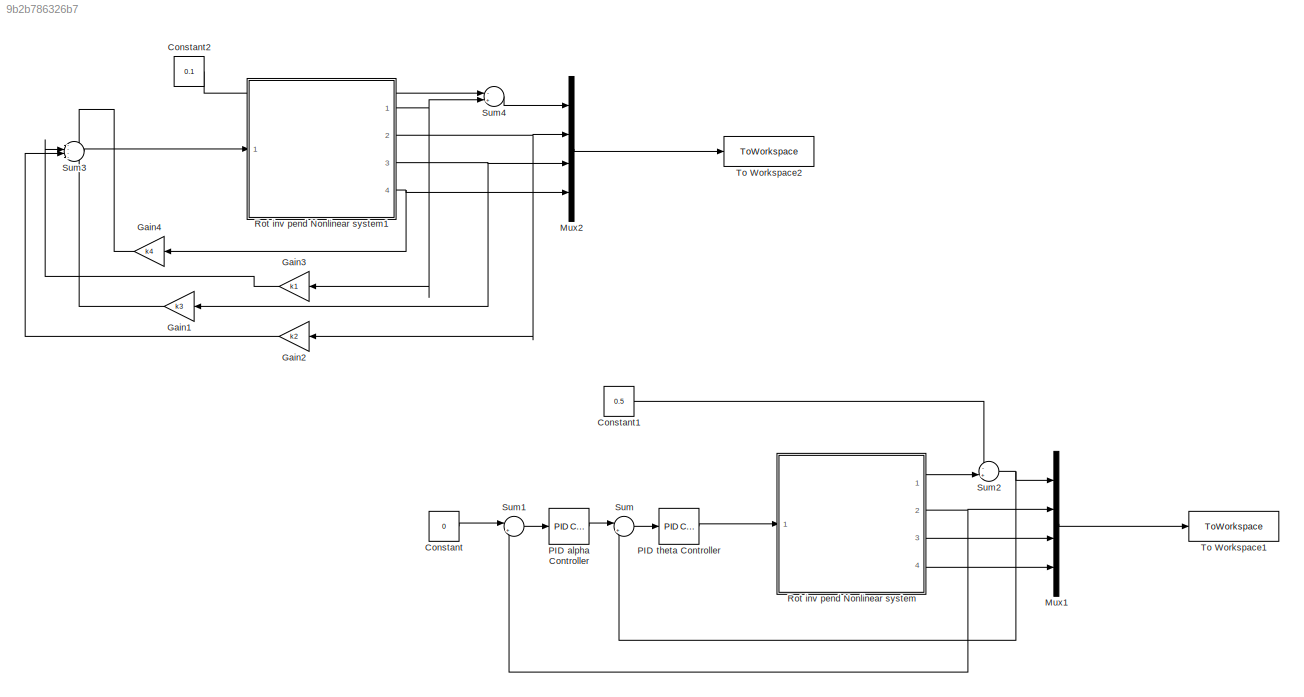
MODEL slx_9b2b786326b7
KIND model
CONFIG AbsTol = auto
CONFIG EnableMultiTasking = off
CONFIG FixedStep = auto
CONFIG MaxStep = auto
CONFIG MinStep = auto
CONFIG RelTol = 1e-3
CONFIG SampleTimeConstraint = Unconstrained
CONFIG Solver = VariableStepAuto
CONFIG SolverName = VariableStepAuto
CONFIG StartTime = 0.0
CONFIG StopTime = 10.0
BLOCK [Constant] Constant
  Value = 0
BLOCK [Constant] Constant1
  Value = 0.5
BLOCK [Constant] Constant2
  Value = 0.1
BLOCK [Gain] Gain1
  Gain = k3
  OutDataTypeStr = Inherit: Inherit via internal rule
  ParamDataTypeStr = Inherit: Inherit via internal rule
  SaturateOnIntegerOverflow = off
BLOCK [Gain] Gain2
  Gain = k2
  OutDataTypeStr = Inherit: Inherit via internal rule
  ParamDataTypeStr = Inherit: Inherit via internal rule
  SaturateOnIntegerOverflow = off
BLOCK [Gain] Gain3
  Gain = k1
  OutDataTypeStr = Inherit: Inherit via internal rule
  ParamDataTypeStr = Inherit: Inherit via internal rule
  SaturateOnIntegerOverflow = off
BLOCK [Gain] Gain4
  Gain = k4
  OutDataTypeStr = Inherit: Inherit via internal rule
  ParamDataTypeStr = Inherit: Inherit via internal rule
  SaturateOnIntegerOverflow = off
BLOCK [Mux] Mux1
  DisplayOption = bar
  Ports = [4, 1]
BLOCK [Mux] Mux2
  DisplayOption = bar
  Ports = [4, 1]
BLOCK [Reference] PID alpha Controller  REF=simulink/Continuous/PID Controller
  Ports = [1, 1]
  SourceBlock = simulink/Continuous/PID Controller
  SourceProductBaseCode = SL
  SourceProductName = Simulink
  SourceType = PID 1dof
BLOCK [Reference] PID theta Controller  REF=simulink/Continuous/PID Controller
  Ports = [1, 1]
  SourceBlock = simulink/Continuous/PID Controller
  SourceProductBaseCode = SL
  SourceProductName = Simulink
  SourceType = PID 1dof
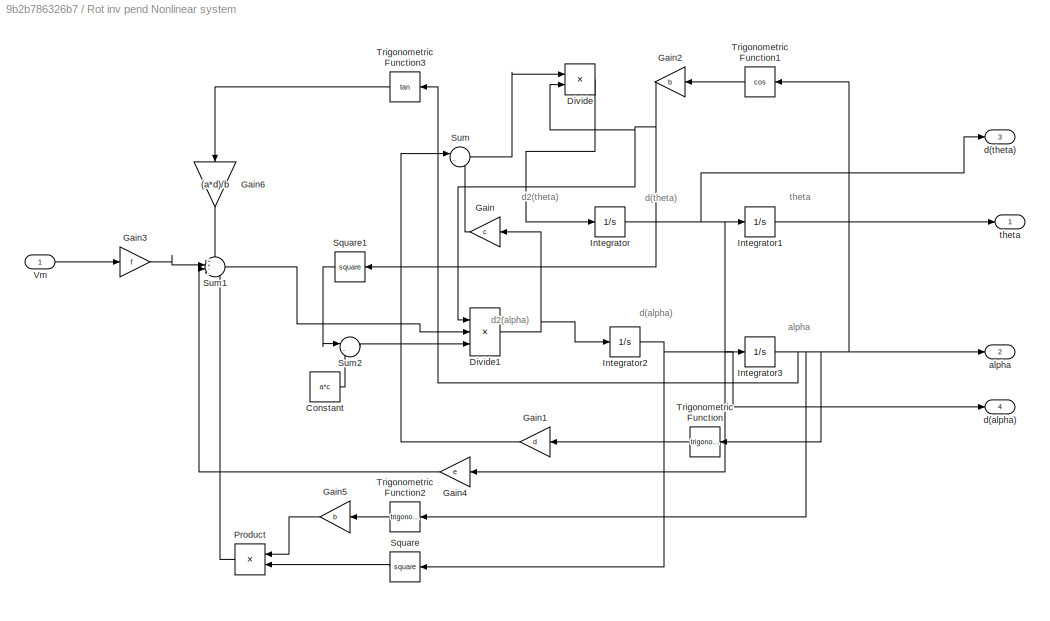
BLOCK [SubSystem] Rot inv pend Nonlinear system
  Ports = [1, 4]
  RequestExecContextInheritance = off
BLOCK [Constant] Rot inv pend Nonlinear system/Constant
  Value = a*c
BLOCK [Product] Rot inv pend Nonlinear system/Divide
  InputSameDT = off
  Inputs = */
  OutDataTypeStr = Inherit: Inherit via internal rule
  Ports = [2, 1]
  RndMeth = Floor
  SaturateOnIntegerOverflow = off
BLOCK [Product] Rot inv pend Nonlinear system/Divide1
  InputSameDT = off
  Inputs = **/
  OutDataTypeStr = Inherit: Inherit via internal rule
  Ports = [3, 1]
  RndMeth = Floor
  SaturateOnIntegerOverflow = off
BLOCK [Gain] Rot inv pend Nonlinear system/Gain
  Gain = c
  OutDataTypeStr = Inherit: Inherit via internal rule
  ParamDataTypeStr = Inherit: Inherit via internal rule
  SaturateOnIntegerOverflow = off
BLOCK [Gain] Rot inv pend Nonlinear system/Gain1
  Gain = d
  OutDataTypeStr = Inherit: Inherit via internal rule
  ParamDataTypeStr = Inherit: Inherit via internal rule
  SaturateOnIntegerOverflow = off
BLOCK [Gain] Rot inv pend Nonlinear system/Gain2
  Gain = b
  OutDataTypeStr = Inherit: Inherit via internal rule
  ParamDataTypeStr = Inherit: Inherit via internal rule
  SaturateOnIntegerOverflow = off
BLOCK [Gain] Rot inv pend Nonlinear system/Gain3
  Gain = f
  OutDataTypeStr = Inherit: Inherit via internal rule
  ParamDataTypeStr = Inherit: Inherit via internal rule
  SaturateOnIntegerOverflow = off
BLOCK [Gain] Rot inv pend Nonlinear system/Gain4
  Gain = e
  OutDataTypeStr = Inherit: Inherit via internal rule
  ParamDataTypeStr = Inherit: Inherit via internal rule
  SaturateOnIntegerOverflow = off
BLOCK [Gain] Rot inv pend Nonlinear system/Gain5
  Gain = b
  OutDataTypeStr = Inherit: Inherit via internal rule
  ParamDataTypeStr = Inherit: Inherit via internal rule
  SaturateOnIntegerOverflow = off
BLOCK [Gain] Rot inv pend Nonlinear system/Gain6
  Gain = (a*d)/b
  OutDataTypeStr = Inherit: Inherit via internal rule
  ParamDataTypeStr = Inherit: Inherit via internal rule
  SaturateOnIntegerOverflow = off
BLOCK [Integrator] Rot inv pend Nonlinear system/Integrator
  Ports = [1, 1]
BLOCK [Integrator] Rot inv pend Nonlinear system/Integrator1
  InitialCondition = theta_init
  Ports = [1, 1]
BLOCK [Integrator] Rot inv pend Nonlinear system/Integrator2
  Ports = [1, 1]
BLOCK [Integrator] Rot inv pend Nonlinear system/Integrator3
  InitialCondition = alpha_init
  Ports = [1, 1]
BLOCK [Product] Rot inv pend Nonlinear system/Product
  InputSameDT = off
  OutDataTypeStr = Inherit: Inherit via internal rule
  Ports = [2, 1]
  RndMeth = Floor
  SaturateOnIntegerOverflow = off
BLOCK [Math] Rot inv pend Nonlinear system/Square
  Operator = square
  Ports = [1, 1]
  SignedPower = off
BLOCK [Math] Rot inv pend Nonlinear system/Square1
  Operator = square
  Ports = [1, 1]
  SignedPower = off
BLOCK [Sum] Rot inv pend Nonlinear system/Sum
  IconShape = round
  InputSameDT = off
  Inputs = |-+
  OutDataTypeStr = Inherit: Inherit via internal rule
  Ports = [2, 1]
  SaturateOnIntegerOverflow = off
BLOCK [Sum] Rot inv pend Nonlinear system/Sum1
  IconShape = round
  InputSameDT = off
  Inputs = ++--
  OutDataTypeStr = Inherit: Inherit via internal rule
  Ports = [4, 1]
  SaturateOnIntegerOverflow = off
BLOCK [Sum] Rot inv pend Nonlinear system/Sum2
  IconShape = round
  InputSameDT = off
  Inputs = |-+
  OutDataTypeStr = Inherit: Inherit via internal rule
  Ports = [2, 1]
  SaturateOnIntegerOverflow = off
BLOCK [Trigonometry] Rot inv pend Nonlinear system/Trigonometric Function
  Ports = [1, 1]
BLOCK [Trigonometry] Rot inv pend Nonlinear system/Trigonometric Function1
  Operator = cos
  Ports = [1, 1]
BLOCK [Trigonometry] Rot inv pend Nonlinear system/Trigonometric Function2
  Ports = [1, 1]
BLOCK [Trigonometry] Rot inv pend Nonlinear system/Trigonometric Function3
  Operator = tan
  Ports = [1, 1]
BLOCK [Inport] Rot inv pend Nonlinear system/Vm
  IconDisplay = Port number
BLOCK [Outport] Rot inv pend Nonlinear system/alpha
  IconDisplay = Port number
  Port = 2
BLOCK [Outport] Rot inv pend Nonlinear system/d(alpha)
  IconDisplay = Port number
  Port = 4
BLOCK [Outport] Rot inv pend Nonlinear system/d(theta)
  IconDisplay = Port number
  Port = 3
BLOCK [Outport] Rot inv pend Nonlinear system/theta
  IconDisplay = Port number
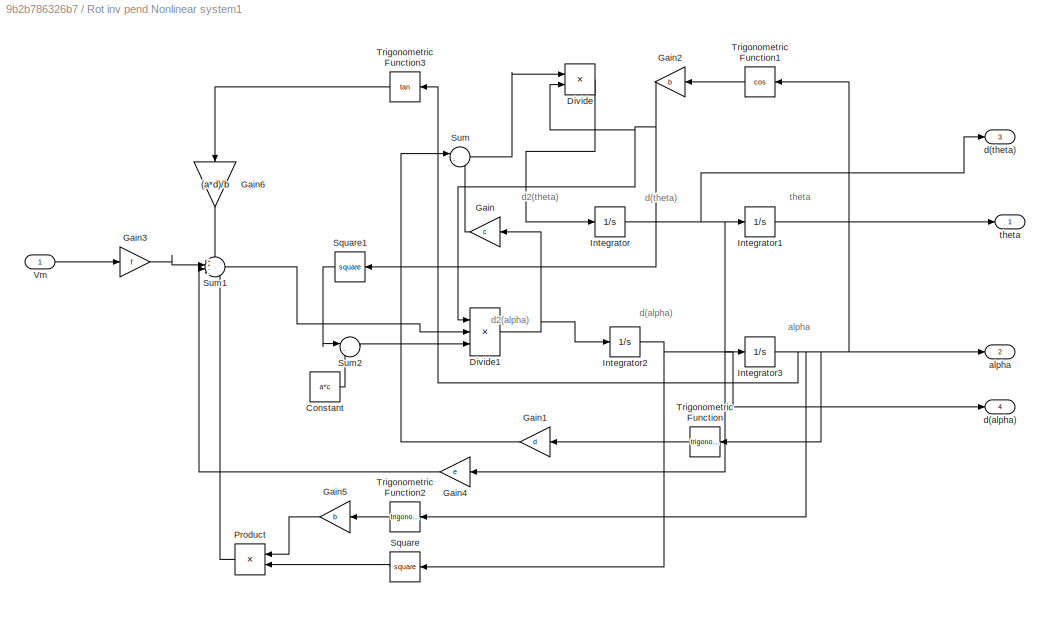
BLOCK [SubSystem] Rot inv pend Nonlinear system1
  Ports = [1, 4]
  RequestExecContextInheritance = off
BLOCK [Constant] Rot inv pend Nonlinear system1/Constant
  Value = a*c
BLOCK [Product] Rot inv pend Nonlinear system1/Divide
  InputSameDT = off
  Inputs = */
  OutDataTypeStr = Inherit: Inherit via internal rule
  Ports = [2, 1]
  RndMeth = Floor
  SaturateOnIntegerOverflow = off
BLOCK [Product] Rot inv pend Nonlinear system1/Divide1
  InputSameDT = off
  Inputs = **/
  OutDataTypeStr = Inherit: Inherit via internal rule
  Ports = [3, 1]
  RndMeth = Floor
  SaturateOnIntegerOverflow = off
BLOCK [Gain] Rot inv pend Nonlinear system1/Gain
  Gain = c
  OutDataTypeStr = Inherit: Inherit via internal rule
  ParamDataTypeStr = Inherit: Inherit via internal rule
  SaturateOnIntegerOverflow = off
BLOCK [Gain] Rot inv pend Nonlinear system1/Gain1
  Gain = d
  OutDataTypeStr = Inherit: Inherit via internal rule
  ParamDataTypeStr = Inherit: Inherit via internal rule
  SaturateOnIntegerOverflow = off
BLOCK [Gain] Rot inv pend Nonlinear system1/Gain2
  Gain = b
  OutDataTypeStr = Inherit: Inherit via internal rule
  ParamDataTypeStr = Inherit: Inherit via internal rule
  SaturateOnIntegerOverflow = off
BLOCK [Gain] Rot inv pend Nonlinear system1/Gain3
  Gain = f
  OutDataTypeStr = Inherit: Inherit via internal rule
  ParamDataTypeStr = Inherit: Inherit via internal rule
  SaturateOnIntegerOverflow = off
BLOCK [Gain] Rot inv pend Nonlinear system1/Gain4
  Gain = e
  OutDataTypeStr = Inherit: Inherit via internal rule
  ParamDataTypeStr = Inherit: Inherit via internal rule
  SaturateOnIntegerOverflow = off
BLOCK [Gain] Rot inv pend Nonlinear system1/Gain5
  Gain = b
  OutDataTypeStr = Inherit: Inherit via internal rule
  ParamDataTypeStr = Inherit: Inherit via internal rule
  SaturateOnIntegerOverflow = off
BLOCK [Gain] Rot inv pend Nonlinear system1/Gain6
  Gain = (a*d)/b
  OutDataTypeStr = Inherit: Inherit via internal rule
  ParamDataTypeStr = Inherit: Inherit via internal rule
  SaturateOnIntegerOverflow = off
BLOCK [Integrator] Rot inv pend Nonlinear system1/Integrator
  Ports = [1, 1]
BLOCK [Integrator] Rot inv pend Nonlinear system1/Integrator1
  InitialCondition = theta_init
  Ports = [1, 1]
BLOCK [Integrator] Rot inv pend Nonlinear system1/Integrator2
  Ports = [1, 1]
BLOCK [Integrator] Rot inv pend Nonlinear system1/Integrator3
  InitialCondition = alpha_init
  Ports = [1, 1]
BLOCK [Product] Rot inv pend Nonlinear system1/Product
  InputSameDT = off
  OutDataTypeStr = Inherit: Inherit via internal rule
  Ports = [2, 1]
  RndMeth = Floor
  SaturateOnIntegerOverflow = off
BLOCK [Math] Rot inv pend Nonlinear system1/Square
  Operator = square
  Ports = [1, 1]
  SignedPower = off
BLOCK [Math] Rot inv pend Nonlinear system1/Square1
  Operator = square
  Ports = [1, 1]
  SignedPower = off
BLOCK [Sum] Rot inv pend Nonlinear system1/Sum
  IconShape = round
  InputSameDT = off
  Inputs = |-+
  OutDataTypeStr = Inherit: Inherit via internal rule
  Ports = [2, 1]
  SaturateOnIntegerOverflow = off
BLOCK [Sum] Rot inv pend Nonlinear system1/Sum1
  IconShape = round
  InputSameDT = off
  Inputs = ++--
  OutDataTypeStr = Inherit: Inherit via internal rule
  Ports = [4, 1]
  SaturateOnIntegerOverflow = off
BLOCK [Sum] Rot inv pend Nonlinear system1/Sum2
  IconShape = round
  InputSameDT = off
  Inputs = |-+
  OutDataTypeStr = Inherit: Inherit via internal rule
  Ports = [2, 1]
  SaturateOnIntegerOverflow = off
BLOCK [Trigonometry] Rot inv pend Nonlinear system1/Trigonometric Function
  Ports = [1, 1]
BLOCK [Trigonometry] Rot inv pend Nonlinear system1/Trigonometric Function1
  Operator = cos
  Ports = [1, 1]
BLOCK [Trigonometry] Rot inv pend Nonlinear system1/Trigonometric Function2
  Ports = [1, 1]
BLOCK [Trigonometry] Rot inv pend Nonlinear system1/Trigonometric Function3
  Operator = tan
  Ports = [1, 1]
BLOCK [Inport] Rot inv pend Nonlinear system1/Vm
  IconDisplay = Port number
BLOCK [Outport] Rot inv pend Nonlinear system1/alpha
  IconDisplay = Port number
  Port = 2
BLOCK [Outport] Rot inv pend Nonlinear system1/d(alpha)
  IconDisplay = Port number
  Port = 4
BLOCK [Outport] Rot inv pend Nonlinear system1/d(theta)
  IconDisplay = Port number
  Port = 3
BLOCK [Outport] Rot inv pend Nonlinear system1/theta
  IconDisplay = Port number
BLOCK [Sum] Sum
  IconShape = round
  InputSameDT = off
  Inputs = |+-
  OutDataTypeStr = Inherit: Inherit via internal rule
  Ports = [2, 1]
  SaturateOnIntegerOverflow = off
BLOCK [Sum] Sum1
  IconShape = round
  InputSameDT = off
  Inputs = |+-
  OutDataTypeStr = Inherit: Inherit via internal rule
  Ports = [2, 1]
  SaturateOnIntegerOverflow = off
BLOCK [Sum] Sum2
  IconShape = round
  InputSameDT = off
  Inputs = -+|
  OutDataTypeStr = Inherit: Inherit via internal rule
  Ports = [2, 1]
  SaturateOnIntegerOverflow = off
BLOCK [Sum] Sum3
  IconShape = round
  InputSameDT = off
  Inputs = ----
  OutDataTypeStr = Inherit: Inherit via internal rule
  Ports = [4, 1]
  SaturateOnIntegerOverflow = off
BLOCK [Sum] Sum4
  IconShape = round
  InputSameDT = off
  Inputs = -+|
  OutDataTypeStr = Inherit: Inherit via internal rule
  Ports = [2, 1]
  SaturateOnIntegerOverflow = off
BLOCK [ToWorkspace] To Workspace1
  FixptAsFi = on
  MaxDataPoints = inf
  Ports = [1]
  SampleTime = -1
  SaveFormat = Timeseries
  VariableName = nonlinrip_pid
BLOCK [ToWorkspace] To Workspace2
  FixptAsFi = on
  MaxDataPoints = inf
  Ports = [1]
  SampleTime = -1
  SaveFormat = Timeseries
  VariableName = nonlinrip_sf
ANNOTATION Rot inv pend Nonlinear system: alpha
ANNOTATION Rot inv pend Nonlinear system: d(alpha)
ANNOTATION Rot inv pend Nonlinear system: d(theta)
ANNOTATION Rot inv pend Nonlinear system: d2(alpha)
ANNOTATION Rot inv pend Nonlinear system: d2(theta)
ANNOTATION Rot inv pend Nonlinear system: theta
ANNOTATION Rot inv pend Nonlinear system1: alpha
ANNOTATION Rot inv pend Nonlinear system1: d(alpha)
ANNOTATION Rot inv pend Nonlinear system1: d(theta)
ANNOTATION Rot inv pend Nonlinear system1: d2(alpha)
ANNOTATION Rot inv pend Nonlinear system1: d2(theta)
ANNOTATION Rot inv pend Nonlinear system1: theta
LINE Constant1:1 -> Sum2:1
LINE Constant2:1 -> Sum4:1
LINE Constant:1 -> Sum1:1
LINE Gain1:1 -> Sum3:4
LINE Gain2:1 -> Sum3:3
LINE Gain3:1 -> Sum3:2
LINE Gain4:1 -> Sum3:1
LINE Mux1:1 -> To Workspace1:1
LINE Mux2:1 -> To Workspace2:1
LINE PID alpha Controller:1 -> Sum:1
LINE PID theta Controller:1 -> Rot inv pend Nonlinear system:1
LINE Rot inv pend Nonlinear system/Constant:1 -> Rot inv pend Nonlinear system/Sum2:2
NET Rot inv pend Nonlinear system/Divide1:1 -> Rot inv pend Nonlinear system/Gain:1, Rot inv pend Nonlinear system/Integrator2:1
LINE Rot inv pend Nonlinear system/Divide:1 -> Rot inv pend Nonlinear system/Integrator:1
LINE Rot inv pend Nonlinear system/Gain1:1 -> Rot inv pend Nonlinear system/Sum:1
NET Rot inv pend Nonlinear system/Gain2:1 -> Rot inv pend Nonlinear system/Divide1:1, Rot inv pend Nonlinear system/Divide:2, Rot inv pend Nonlinear system/Square1:1
LINE Rot inv pend Nonlinear system/Gain3:1 -> Rot inv pend Nonlinear system/Sum1:2
LINE Rot inv pend Nonlinear system/Gain4:1 -> Rot inv pend Nonlinear system/Sum1:3
LINE Rot inv pend Nonlinear system/Gain5:1 -> Rot inv pend Nonlinear system/Product:1
LINE Rot inv pend Nonlinear system/Gain6:1 -> Rot inv pend Nonlinear system/Sum1:1
LINE Rot inv pend Nonlinear system/Gain:1 -> Rot inv pend Nonlinear system/Sum:2
LINE Rot inv pend Nonlinear system/Integrator1:1 -> Rot inv pend Nonlinear system/theta:1
NET Rot inv pend Nonlinear system/Integrator2:1 -> Rot inv pend Nonlinear system/Integrator3:1, Rot inv pend Nonlinear system/Square:1, Rot inv pend Nonlinear system/d(alpha):1
NET Rot inv pend Nonlinear system/Integrator3:1 -> Rot inv pend Nonlinear system/Trigonometric Function1:1, Rot inv pend Nonlinear system/Trigonometric Function2:1, Rot inv pend Nonlinear system/Trigonometric Function3:1, Rot inv pend Nonlinear system/Trigonometric Function:1, Rot inv pend Nonlinear system/alpha:1
NET Rot inv pend Nonlinear system/Integrator:1 -> Rot inv pend Nonlinear system/Gain4:1, Rot inv pend Nonlinear system/Integrator1:1, Rot inv pend Nonlinear system/d(theta):1
LINE Rot inv pend Nonlinear system/Product:1 -> Rot inv pend Nonlinear system/Sum1:4
LINE Rot inv pend Nonlinear system/Square1:1 -> Rot inv pend Nonlinear system/Sum2:1
LINE Rot inv pend Nonlinear system/Square:1 -> Rot inv pend Nonlinear system/Product:2
LINE Rot inv pend Nonlinear system/Sum1:1 -> Rot inv pend Nonlinear system/Divide1:2
LINE Rot inv pend Nonlinear system/Sum2:1 -> Rot inv pend Nonlinear system/Divide1:3
LINE Rot inv pend Nonlinear system/Sum:1 -> Rot inv pend Nonlinear system/Divide:1
LINE Rot inv pend Nonlinear system/Trigonometric Function1:1 -> Rot inv pend Nonlinear system/Gain2:1
LINE Rot inv pend Nonlinear system/Trigonometric Function2:1 -> Rot inv pend Nonlinear system/Gain5:1
LINE Rot inv pend Nonlinear system/Trigonometric Function3:1 -> Rot inv pend Nonlinear system/Gain6:1
LINE Rot inv pend Nonlinear system/Trigonometric Function:1 -> Rot inv pend Nonlinear system/Gain1:1
LINE Rot inv pend Nonlinear system/Vm:1 -> Rot inv pend Nonlinear system/Gain3:1
LINE Rot inv pend Nonlinear system1/Constant:1 -> Rot inv pend Nonlinear system1/Sum2:2
NET Rot inv pend Nonlinear system1/Divide1:1 -> Rot inv pend Nonlinear system1/Gain:1, Rot inv pend Nonlinear system1/Integrator2:1
LINE Rot inv pend Nonlinear system1/Divide:1 -> Rot inv pend Nonlinear system1/Integrator:1
LINE Rot inv pend Nonlinear system1/Gain1:1 -> Rot inv pend Nonlinear system1/Sum:1
NET Rot inv pend Nonlinear system1/Gain2:1 -> Rot inv pend Nonlinear system1/Divide1:1, Rot inv pend Nonlinear system1/Divide:2, Rot inv pend Nonlinear system1/Square1:1
LINE Rot inv pend Nonlinear system1/Gain3:1 -> Rot inv pend Nonlinear system1/Sum1:2
LINE Rot inv pend Nonlinear system1/Gain4:1 -> Rot inv pend Nonlinear system1/Sum1:3
LINE Rot inv pend Nonlinear system1/Gain5:1 -> Rot inv pend Nonlinear system1/Product:1
LINE Rot inv pend Nonlinear system1/Gain6:1 -> Rot inv pend Nonlinear system1/Sum1:1
LINE Rot inv pend Nonlinear system1/Gain:1 -> Rot inv pend Nonlinear system1/Sum:2
LINE Rot inv pend Nonlinear system1/Integrator1:1 -> Rot inv pend Nonlinear system1/theta:1
NET Rot inv pend Nonlinear system1/Integrator2:1 -> Rot inv pend Nonlinear system1/Integrator3:1, Rot inv pend Nonlinear system1/Square:1, Rot inv pend Nonlinear system1/d(alpha):1
NET Rot inv pend Nonlinear system1/Integrator3:1 -> Rot inv pend Nonlinear system1/Trigonometric Function1:1, Rot inv pend Nonlinear system1/Trigonometric Function2:1, Rot inv pend Nonlinear system1/Trigonometric Function3:1, Rot inv pend Nonlinear system1/Trigonometric Function:1, Rot inv pend Nonlinear system1/alpha:1
NET Rot inv pend Nonlinear system1/Integrator:1 -> Rot inv pend Nonlinear system1/Gain4:1, Rot inv pend Nonlinear system1/Integrator1:1, Rot inv pend Nonlinear system1/d(theta):1
LINE Rot inv pend Nonlinear system1/Product:1 -> Rot inv pend Nonlinear system1/Sum1:4
LINE Rot inv pend Nonlinear system1/Square1:1 -> Rot inv pend Nonlinear system1/Sum2:1
LINE Rot inv pend Nonlinear system1/Square:1 -> Rot inv pend Nonlinear system1/Product:2
LINE Rot inv pend Nonlinear system1/Sum1:1 -> Rot inv pend Nonlinear system1/Divide1:2
LINE Rot inv pend Nonlinear system1/Sum2:1 -> Rot inv pend Nonlinear system1/Divide1:3
LINE Rot inv pend Nonlinear system1/Sum:1 -> Rot inv pend Nonlinear system1/Divide:1
LINE Rot inv pend Nonlinear system1/Trigonometric Function1:1 -> Rot inv pend Nonlinear system1/Gain2:1
LINE Rot inv pend Nonlinear system1/Trigonometric Function2:1 -> Rot inv pend Nonlinear system1/Gain5:1
LINE Rot inv pend Nonlinear system1/Trigonometric Function3:1 -> Rot inv pend Nonlinear system1/Gain6:1
LINE Rot inv pend Nonlinear system1/Trigonometric Function:1 -> Rot inv pend Nonlinear system1/Gain1:1
LINE Rot inv pend Nonlinear system1/Vm:1 -> Rot inv pend Nonlinear system1/Gain3:1
NET Rot inv pend Nonlinear system1:1 -> Gain3:1, Sum4:2
NET Rot inv pend Nonlinear system1:2 -> Gain2:1, Mux2:2
NET Rot inv pend Nonlinear system1:3 -> Gain1:1, Mux2:3
NET Rot inv pend Nonlinear system1:4 -> Gain4:1, Mux2:4
LINE Rot inv pend Nonlinear system:1 -> Sum2:2
NET Rot inv pend Nonlinear system:2 -> Mux1:2, Sum1:2
LINE Rot inv pend Nonlinear system:3 -> Mux1:3
LINE Rot inv pend Nonlinear system:4 -> Mux1:4
LINE Sum1:1 -> PID alpha Controller:1
NET Sum2:1 -> Mux1:1, Sum:2
LINE Sum3:1 -> Rot inv pend Nonlinear system1:1
LINE Sum4:1 -> Mux2:1
LINE Sum:1 -> PID theta Controller:1
note: NET lines group one-source signal fan-out (src -> all destinations, sorted); 1:1 wires keep LINE
